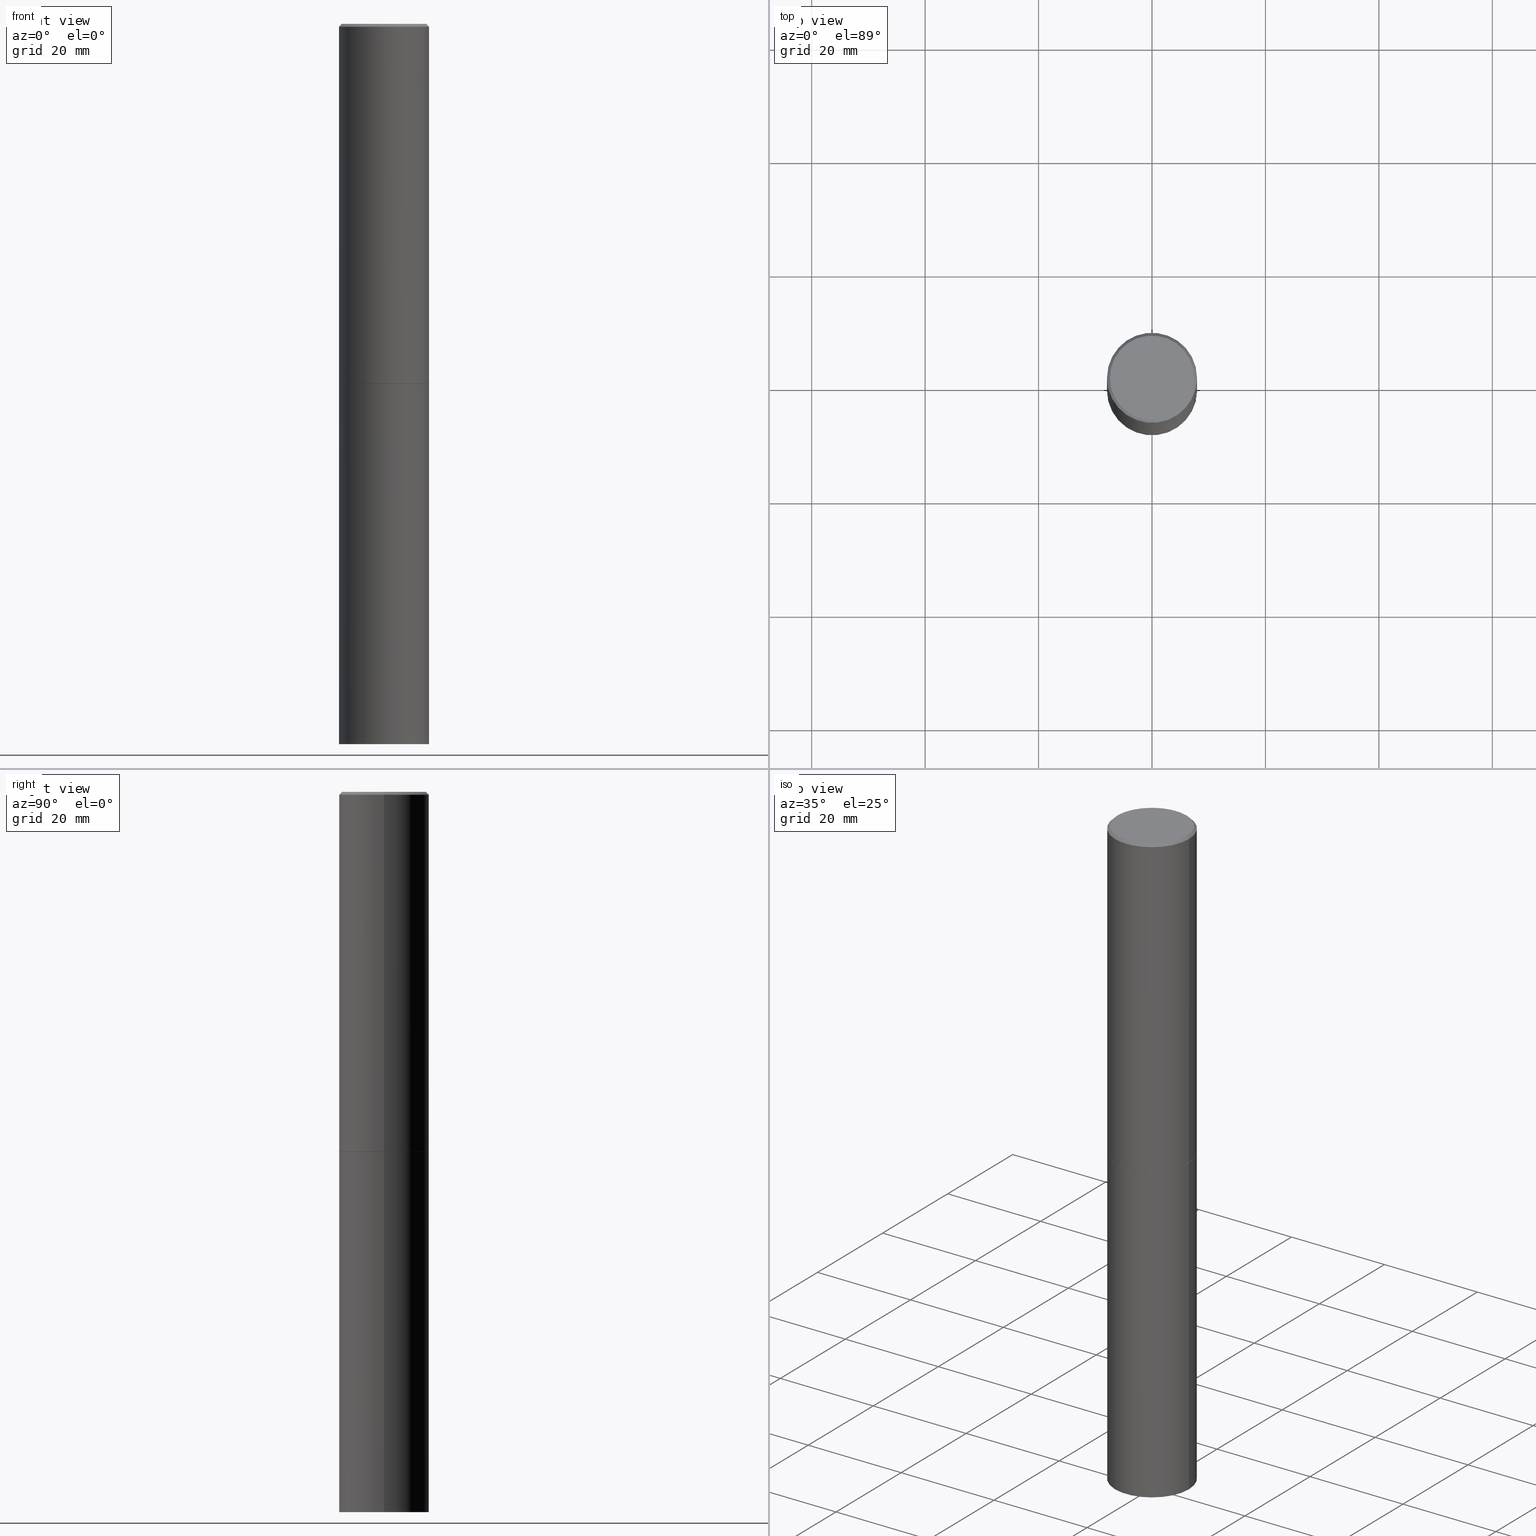
[diagram: canonical four-view strip — front | top / right | iso, engineering-drawing reading convention]
A machine part, canonical four-view strip (front | top / right | iso — engineering-drawing reading convention). The complete STEP part file that produces these views, byte-faithful:
ISO-10303-21;
HEADER;
FILE_DESCRIPTION (( 'STEP AP203' ),
    '1' );
FILE_NAME ('34718.STEP',
    '2024-02-27T17:00:30',
    ( '' ),
    ( '' ),
    'SwSTEP 2.0',
    'SolidWorks 2023',
    '' );
FILE_SCHEMA (( 'CONFIG_CONTROL_DESIGN' ));
ENDSEC;

DATA;
#1 = UNCERTAINTY_MEASURE_WITH_UNIT (LENGTH_MEASURE( 1.000000000000000082E-05 ), #25, 'distance_accuracy_value', 'NONE');
#2 = COORDINATED_UNIVERSAL_TIME_OFFSET ( 5, 0, .BEHIND. ) ;
#3 = CC_DESIGN_PERSON_AND_ORGANIZATION_ASSIGNMENT ( #337, #310, ( #106 ) ) ;
#4 = CIRCLE ( 'NONE', #175, 0.3124999999999997224 ) ;
#5 = MECHANICAL_CONTEXT ( 'NONE', #239, 'mechanical' ) ;
#6 = EDGE_CURVE ( 'NONE', #114, #268, #324, .T. ) ;
#7 = AXIS2_PLACEMENT_3D ( 'NONE', #20, #344, #215 ) ;
#8 = CC_DESIGN_PERSON_AND_ORGANIZATION_ASSIGNMENT ( #325, #249, ( #210 ) ) ;
#9 = ORIENTED_EDGE ( 'NONE', *, *, #135, .F. ) ;
#10 = ORIENTED_EDGE ( 'NONE', *, *, #259, .T. ) ;
#11 = DIRECTION ( 'NONE',  ( -0.7071067811868130271, 7.493145998871311837E-15, 0.7071067811862817853 ) ) ;
#12 = EDGE_LOOP ( 'NONE', ( #245, #123, #58, #172 ) ) ;
#13 = CLOSED_SHELL ( 'NONE', ( #102, #145, #34, #366 ) ) ;
#14 = APPROVAL_PERSON_ORGANIZATION ( #353, #258, #221 ) ;
#15 = ORIENTED_EDGE ( 'NONE', *, *, #326, .F. ) ;
#16 = EDGE_CURVE ( 'NONE', #217, #214, #56, .T. ) ;
#17 = PERSON_AND_ORGANIZATION ( #227, #279 ) ;
#18 = CARTESIAN_POINT ( 'NONE',  ( 2.182175836777080620E-15, 0.3124999999999825140, -5.000000000000000888 ) ) ;
#19 = ORIENTED_EDGE ( 'NONE', *, *, #16, .T. ) ;
#20 = CARTESIAN_POINT ( 'NONE',  ( 0.000000000000000000, 0.000000000000000000, 0.000000000000000000 ) ) ;
#21 = DIRECTION ( 'NONE',  ( 1.000000000000000000, -6.982962677686269077E-15, 0.000000000000000000 ) ) ;
#22 = COORDINATED_UNIVERSAL_TIME_OFFSET ( 5, 0, .BEHIND. ) ;
#23 = ADVANCED_FACE ( 'NONE', ( #299 ), #111, .T. ) ;
#24 = AXIS2_PLACEMENT_3D ( 'NONE', #292, #129, #100 ) ;
#25 =( CONVERSION_BASED_UNIT ( 'INCH', #194 ) LENGTH_UNIT ( ) NAMED_UNIT ( #260 ) );
#26 = LINE ( 'NONE', #284, #116 ) ;
#27 = DIRECTION ( 'NONE',  ( -2.445468806185136597E-29, 3.491481338843145583E-15, 1.000000000000000000 ) ) ;
#28 = CARTESIAN_POINT ( 'NONE',  ( 6.113672015462842613E-29, -8.728703347107864943E-15, -2.500000000000000000 ) ) ;
#29 = AXIS2_PLACEMENT_3D ( 'NONE', #248, #321, #46 ) ;
#30 = LOCAL_TIME ( 12, 0, 30.00000000000000000, #2 ) ;
#31 = ADVANCED_FACE ( 'NONE', ( #349 ), #156, .F. ) ;
#32 = AXIS2_PLACEMENT_3D ( 'NONE', #189, #352, #220 ) ;
#33 = DIRECTION ( 'NONE',  ( -1.000000000000000000, 6.982962677686266711E-15, 0.000000000000000000 ) ) ;
#34 = ADVANCED_FACE ( 'NONE', ( #77 ), #43, .F. ) ;
#35 = DIRECTION ( 'NONE',  ( 1.000000000000000000, 0.000000000000000000, 0.000000000000000000 ) ) ;
#36 = EDGE_LOOP ( 'NONE', ( #99, #103, #250, #184 ) ) ;
#37 = EDGE_CURVE ( 'NONE', #79, #114, #294, .T. ) ;
#38 = VECTOR ( 'NONE', #320, 39.37007874015748143 ) ;
#39 = ORIENTED_EDGE ( 'NONE', *, *, #285, .F. ) ;
#40 = CARTESIAN_POINT ( 'NONE',  ( 0.000000000000000000, 0.000000000000000000, 0.000000000000000000 ) ) ;
#41 = EDGE_CURVE ( 'NONE', #132, #164, #343, .T. ) ;
#42 = CARTESIAN_POINT ( 'NONE',  ( 6.113672015462842613E-29, -8.728703347107864943E-15, -2.500000000000000000 ) ) ;
#43 = PLANE ( 'NONE',  #32 ) ;
#44 = VECTOR ( 'NONE', #84, 39.37007874015748854 ) ;
#45 = APPROVAL ( #282, 'UNSPECIFIED' ) ;
#46 = DIRECTION ( 'NONE',  ( 1.000000000000000000, -6.982962677686265133E-15, 0.000000000000000000 ) ) ;
#47 = ORIENTED_EDGE ( 'NONE', *, *, #259, .F. ) ;
#48 = CARTESIAN_POINT ( 'NONE',  ( 6.111226546656659252E-29, -8.725211865769023513E-15, -2.499000000000000998 ) ) ;
#49 = CARTESIAN_POINT ( 'NONE',  ( 1.222734403092568523E-28, -1.745740669421572989E-14, -5.000000000000000000 ) ) ;
#50 = CYLINDRICAL_SURFACE ( 'NONE', #7, 0.3125000000000000000 ) ;
#51 = DIRECTION ( 'NONE',  ( 1.000000000000000000, -6.982962677686269077E-15, 0.000000000000000000 ) ) ;
#52 = CARTESIAN_POINT ( 'NONE',  ( 4.890937612370298557E-31, -6.982962677686327354E-17, -0.02000000000000010103 ) ) ;
#53 = CARTESIAN_POINT ( 'NONE',  ( 0.3125000000000000000, -1.091087918388482329E-14, -2.500000000000000000 ) ) ;
#54 = EDGE_CURVE ( 'NONE', #79, #340, #316, .T. ) ;
#55 = ORIENTED_EDGE ( 'NONE', *, *, #140, .T. ) ;
#56 = CIRCLE ( 'NONE', #29, 0.3125000000000000000 ) ;
#57 = CC_DESIGN_APPROVAL ( #258, ( #210 ) ) ;
#58 = ORIENTED_EDGE ( 'NONE', *, *, #6, .T. ) ;
#59 = APPLICATION_CONTEXT ( 'configuration controlled 3d designs of mechanical parts and assemblies' ) ;
#60 = PERSON_AND_ORGANIZATION ( #227, #279 ) ;
#61 = CIRCLE ( 'NONE', #169, 0.3124999999999997224 ) ;
#62 = CARTESIAN_POINT ( 'NONE',  ( 4.890937612370298557E-31, -6.982962677686327354E-17, -0.02000000000000010103 ) ) ;
#63 = CARTESIAN_POINT ( 'NONE',  ( -0.3124999999999998890, 2.220446049250312292E-15, -1.537167215704657391E-29 ) ) ;
#64 = EDGE_LOOP ( 'NONE', ( #15, #231, #351, #328 ) ) ;
#65 = EDGE_CURVE ( 'NONE', #164, #214, #179, .T. ) ;
#66 = DIRECTION ( 'NONE',  ( 2.445468806185136597E-29, -3.491481338843145583E-15, -1.000000000000000000 ) ) ;
#67 = DIRECTION ( 'NONE',  ( -2.445468806185136597E-29, 3.491481338843145583E-15, 1.000000000000000000 ) ) ;
#68 = PERSON_AND_ORGANIZATION_ROLE ( 'creator' ) ;
#69 = DIRECTION ( 'NONE',  ( 2.438088387897960049E-29, -3.491481338843145188E-15, -1.000000000000000000 ) ) ;
#70 = CALENDAR_DATE ( 2024, 27, 2 ) ;
#71 = AXIS2_PLACEMENT_3D ( 'NONE', #204, #142, #315 ) ;
#72 = APPROVAL_PERSON_ORGANIZATION ( #60, #141, #174 ) ;
#73 = ADVANCED_FACE ( 'NONE', ( #243 ), #230, .T. ) ;
#74 = ORIENTED_EDGE ( 'NONE', *, *, #6, .F. ) ;
#75 = DIRECTION ( 'NONE',  ( -2.445468806185136877E-29, 3.491481338843145188E-15, 1.000000000000000000 ) ) ;
#76 = DIRECTION ( 'NONE',  ( -2.445468806185136597E-29, 3.491481338843145583E-15, 1.000000000000000000 ) ) ;
#77 = FACE_OUTER_BOUND ( 'NONE', #339, .T. ) ;
#78 = CC_DESIGN_DATE_AND_TIME_ASSIGNMENT ( #246, #115, ( #106 ) ) ;
#79 = VERTEX_POINT ( 'NONE', #118 ) ;
#80 =( NAMED_UNIT ( * ) SI_UNIT ( $, .STERADIAN. ) SOLID_ANGLE_UNIT ( ) );
#81 = FACE_OUTER_BOUND ( 'NONE', #272, .T. ) ;
#82 = AXIS2_PLACEMENT_3D ( 'NONE', #153, #252, #298 ) ;
#83 = ORIENTED_EDGE ( 'NONE', *, *, #283, .F. ) ;
#84 = DIRECTION ( 'NONE',  ( 0.7071067811868130271, -2.468850131085038979E-15, 0.7071067811862817853 ) ) ;
#85 = DIRECTION ( 'NONE',  ( -2.445468806185136597E-29, 3.491481338843145583E-15, 1.000000000000000000 ) ) ;
#86 = CC_DESIGN_DATE_AND_TIME_ASSIGNMENT ( #356, #105, ( #210 ) ) ;
#87 = AXIS2_PLACEMENT_3D ( 'NONE', #91, #288, #35 ) ;
#88 = FACE_OUTER_BOUND ( 'NONE', #12, .T. ) ;
#89 = CLOSED_SHELL ( 'NONE', ( #173, #196, #266, #73, #92, #23, #295, #31 ) ) ;
#90 = LOCAL_TIME ( 12, 0, 30.00000000000000000, #277 ) ;
#91 = CARTESIAN_POINT ( 'NONE',  ( 0.000000000000000000, 0.000000000000000000, 0.000000000000000000 ) ) ;
#92 = ADVANCED_FACE ( 'NONE', ( #88 ), #287, .T. ) ;
#93 = DIRECTION ( 'NONE',  ( -2.445468806185136597E-29, 3.491481338843145583E-15, 1.000000000000000000 ) ) ;
#94 = CIRCLE ( 'NONE', #96, 0.3125000000000000000 ) ;
#95 = CARTESIAN_POINT ( 'NONE',  ( 0.3125000000000000000, -1.963958253099268981E-14, -5.000000000000000000 ) ) ;
#96 = AXIS2_PLACEMENT_3D ( 'NONE', #136, #229, #256 ) ;
#97 = DIRECTION ( 'NONE',  ( -1.000000000000000000, 6.982962677686265922E-15, -4.876176775795935793E-29 ) ) ;
#98 = CARTESIAN_POINT ( 'NONE',  ( 2.042516583223230567E-15, 0.2924999999999997047, -1.016989779121518604E-15 ) ) ;
#99 = ORIENTED_EDGE ( 'NONE', *, *, #314, .F. ) ;
#100 = DIRECTION ( 'NONE',  ( 1.000000000000000000, -6.982962677686265133E-15, 4.876067333457694521E-29 ) ) ;
#101 = APPROVAL_STATUS ( 'not_yet_approved' ) ;
#102 = ADVANCED_FACE ( 'NONE', ( #181 ), #348, .T. ) ;
#103 = ORIENTED_EDGE ( 'NONE', *, *, #41, .T. ) ;
#104 = AXIS2_PLACEMENT_3D ( 'NONE', #290, #146, #224 ) ;
#105 = DATE_TIME_ROLE ( 'classification_date' ) ;
#106 = PRODUCT_DEFINITION ( 'UNKNOWN', '', #112, #308 ) ;
#107 = ORIENTED_EDGE ( 'NONE', *, *, #253, .F. ) ;
#108 = CARTESIAN_POINT ( 'NONE',  ( 0.3114999999999999991, -1.090389622120713728E-14, -2.500000000000000000 ) ) ;
#109 = SHAPE_DEFINITION_REPRESENTATION ( #205, #365 ) ;
#110 = DIRECTION ( 'NONE',  ( 1.000000000000000000, -6.982962677686269077E-15, 0.000000000000000000 ) ) ;
#111 = CONICAL_SURFACE ( 'NONE', #197, 0.3114999999999999991, 0.7853981633978239785 ) ;
#112 = PRODUCT_DEFINITION_FORMATION_WITH_SPECIFIED_SOURCE ( 'ANY', '', #262, .NOT_KNOWN. ) ;
#113 = DIRECTION ( 'NONE',  ( -2.438088387897960049E-29, 3.491481338843145188E-15, 1.000000000000000000 ) ) ;
#114 = VERTEX_POINT ( 'NONE', #155 ) ;
#115 = DATE_TIME_ROLE ( 'creation_date' ) ;
#116 = VECTOR ( 'NONE', #134, 39.37007874015748143 ) ;
#117 = VECTOR ( 'NONE', #158, 39.37007874015748143 ) ;
#118 = CARTESIAN_POINT ( 'NONE',  ( -0.3125000000000000000, -2.177074697022629142E-15, -2.499000000000000998 ) ) ;
#119 = DATE_AND_TIME ( #203, #30 ) ;
#120 = APPLICATION_PROTOCOL_DEFINITION ( 'international standard', 'config_control_design', 1994, #59 ) ;
#121 = EDGE_CURVE ( 'NONE', #268, #340, #4, .T. ) ;
#122 = EDGE_CURVE ( 'NONE', #322, #346, #269, .T. ) ;
#123 = ORIENTED_EDGE ( 'NONE', *, *, #37, .T. ) ;
#124 = DIRECTION ( 'NONE',  ( -2.445468806185136597E-29, 3.491481338843145583E-15, 1.000000000000000000 ) ) ;
#125 = PRODUCT_RELATED_PRODUCT_CATEGORY ( 'detail', '', ( #262 ) ) ;
#126 = EDGE_LOOP ( 'NONE', ( #361, #137, #148, #74 ) ) ;
#127 = CONICAL_SURFACE ( 'NONE', #233, 0.3114999999999999991, 0.7853981633978239785 ) ;
#128 = CARTESIAN_POINT ( 'NONE',  ( -0.3114999999999999991, -6.510064270866932046E-15, -2.500000000000000000 ) ) ;
#129 = DIRECTION ( 'NONE',  ( -2.445468806185136597E-29, 3.491481338843145583E-15, 1.000000000000000000 ) ) ;
#130 = CARTESIAN_POINT ( 'NONE',  ( 6.113672015462842613E-29, -8.728703347107864943E-15, -2.500000000000000000 ) ) ;
#131 = PERSON_AND_ORGANIZATION ( #227, #279 ) ;
#132 = VERTEX_POINT ( 'NONE', #149 ) ;
#133 = FACE_OUTER_BOUND ( 'NONE', #126, .T. ) ;
#134 = DIRECTION ( 'NONE',  ( -0.7071067811865466846, 2.468850131082247989E-15, -0.7071067811865483499 ) ) ;
#135 = EDGE_CURVE ( 'NONE', #114, #79, #286, .T. ) ;
#136 = CARTESIAN_POINT ( 'NONE',  ( 1.222734403092568523E-28, -1.745740669421572989E-14, -5.000000000000000000 ) ) ;
#137 = ORIENTED_EDGE ( 'NONE', *, *, #54, .T. ) ;
#138 = CARTESIAN_POINT ( 'NONE',  ( 6.113672015462842613E-29, -8.728703347107864943E-15, -2.500000000000000000 ) ) ;
#139 = AXIS2_PLACEMENT_3D ( 'NONE', #98, #69, #97 ) ;
#140 = EDGE_CURVE ( 'NONE', #345, #79, #183, .T. ) ;
#141 = APPROVAL ( #261, 'UNSPECIFIED' ) ;
#142 = DIRECTION ( 'NONE',  ( -2.445468806185136597E-29, 3.491481338843145583E-15, 1.000000000000000000 ) ) ;
#143 = EDGE_LOOP ( 'NONE', ( #319, #10, #228, #296 ) ) ;
#144 = APPROVAL_PERSON_ORGANIZATION ( #198, #45, #225 ) ;
#145 = ADVANCED_FACE ( 'NONE', ( #275 ), #265, .T. ) ;
#146 = DIRECTION ( 'NONE',  ( -2.445468806185136597E-29, 3.491481338843145583E-15, 1.000000000000000000 ) ) ;
#147 = DIRECTION ( 'NONE',  ( -2.445468806185136877E-29, 3.491481338843145188E-15, 1.000000000000000000 ) ) ;
#148 = ORIENTED_EDGE ( 'NONE', *, *, #121, .F. ) ;
#149 = CARTESIAN_POINT ( 'NONE',  ( -0.3125000000000000000, -1.087260897141148433E-14, -5.000000000000000000 ) ) ;
#150 = CARTESIAN_POINT ( 'NONE',  ( 6.111226546656659252E-29, -8.725211865769023513E-15, -2.499000000000000998 ) ) ;
#151 = CARTESIAN_POINT ( 'NONE',  ( -0.3124999999999997224, 2.112346210000093077E-15, -0.02000000000000010103 ) ) ;
#152 = VECTOR ( 'NONE', #270, 39.37007874015748143 ) ;
#153 = CARTESIAN_POINT ( 'NONE',  ( 6.113672015462842613E-29, -8.728703347107864943E-15, -2.500000000000000000 ) ) ;
#154 = EDGE_LOOP ( 'NONE', ( #176, #47 ) ) ;
#155 = CARTESIAN_POINT ( 'NONE',  ( 0.3125000000000000000, -1.090738770254598186E-14, -2.499000000000000998 ) ) ;
#156 = PLANE ( 'NONE',  #139 ) ;
#157 = APPROVAL_DATE_TIME ( #358, #45 ) ;
#158 = DIRECTION ( 'NONE',  ( 0.7071067811865466846, -7.319954787623252890E-15, -0.7071067811865483499 ) ) ;
#159 = ORIENTED_EDGE ( 'NONE', *, *, #41, .F. ) ;
#160 = CARTESIAN_POINT ( 'NONE',  ( -0.2924999999999997047, 2.077431396611661822E-15, 8.537024980186416602E-18 ) ) ;
#161 = DIRECTION ( 'NONE',  ( -2.445468806185136597E-29, 3.491481338843145583E-15, 1.000000000000000000 ) ) ;
#162 =( GEOMETRIC_REPRESENTATION_CONTEXT ( 3 ) GLOBAL_UNCERTAINTY_ASSIGNED_CONTEXT ( ( #1 ) ) GLOBAL_UNIT_ASSIGNED_CONTEXT ( ( #25, #211, #80 ) ) REPRESENTATION_CONTEXT ( 'NONE', 'WORKASPACE' ) );
#163 = DIRECTION ( 'NONE',  ( -1.000000000000000000, 6.982962677686266711E-15, 0.000000000000000000 ) ) ;
#164 = VERTEX_POINT ( 'NONE', #95 ) ;
#165 = PLANE ( 'NONE',  #188 ) ;
#166 = DIRECTION ( 'NONE',  ( 1.000000000000000000, -6.982962677686266711E-15, 0.000000000000000000 ) ) ;
#167 = CIRCLE ( 'NONE', #82, 0.3125000000000000000 ) ;
#168 = PERSON_AND_ORGANIZATION ( #227, #279 ) ;
#169 = AXIS2_PLACEMENT_3D ( 'NONE', #52, #161, #166 ) ;
#170 = LOCAL_TIME ( 12, 0, 30.00000000000000000, #312 ) ;
#171 = CC_DESIGN_PERSON_AND_ORGANIZATION_ASSIGNMENT ( #131, #68, ( #112 ) ) ;
#172 = ORIENTED_EDGE ( 'NONE', *, *, #234, .F. ) ;
#173 = ADVANCED_FACE ( 'NONE', ( #187 ), #127, .T. ) ;
#174 = APPROVAL_ROLE ( '' ) ;
#175 = AXIS2_PLACEMENT_3D ( 'NONE', #62, #242, #255 ) ;
#176 = ORIENTED_EDGE ( 'NONE', *, *, #222, .F. ) ;
#177 = EDGE_CURVE ( 'NONE', #214, #217, #167, .T. ) ;
#178 = CYLINDRICAL_SURFACE ( 'NONE', #104, 0.3124999999999998890 ) ;
#179 = LINE ( 'NONE', #291, #237 ) ;
#180 =( LENGTH_UNIT ( ) NAMED_UNIT ( * ) SI_UNIT ( $, .METRE. ) );
#181 = FACE_OUTER_BOUND ( 'NONE', #241, .T. ) ;
#182 = CARTESIAN_POINT ( 'NONE',  ( 0.3124999999999998890, -2.182175836776957558E-15, 1.523805242436229235E-29 ) ) ;
#183 = LINE ( 'NONE', #341, #218 ) ;
#184 = ORIENTED_EDGE ( 'NONE', *, *, #16, .F. ) ;
#185 = ORIENTED_EDGE ( 'NONE', *, *, #177, .F. ) ;
#186 = AXIS2_PLACEMENT_3D ( 'NONE', #48, #76, #191 ) ;
#187 = FACE_OUTER_BOUND ( 'NONE', #355, .T. ) ;
#188 = AXIS2_PLACEMENT_3D ( 'NONE', #28, #113, #251 ) ;
#189 = CARTESIAN_POINT ( 'NONE',  ( 2.182175836777019089E-15, 0.3124999999999912847, -2.500000000000001332 ) ) ;
#190 = CARTESIAN_POINT ( 'NONE',  ( 0.2924999999999997047, -2.110215457714317959E-15, 8.537024980215342529E-18 ) ) ;
#191 = DIRECTION ( 'NONE',  ( 1.000000000000000000, -6.982962677686265133E-15, 0.000000000000000000 ) ) ;
#192 = DIRECTION ( 'NONE',  ( 1.000000000000000000, -6.982962677686265133E-15, 0.000000000000000000 ) ) ;
#193 = SECURITY_CLASSIFICATION_LEVEL ( 'unclassified' ) ;
#194 = LENGTH_MEASURE_WITH_UNIT ( LENGTH_MEASURE( 0.02539999999999999897 ), #180 );
#195 = CARTESIAN_POINT ( 'NONE',  ( 4.890937612370298557E-31, -6.982962677686327354E-17, -0.02000000000000010103 ) ) ;
#196 = ADVANCED_FACE ( 'NONE', ( #133 ), #178, .T. ) ;
#197 = AXIS2_PLACEMENT_3D ( 'NONE', #130, #276, #293 ) ;
#198 = PERSON_AND_ORGANIZATION ( #227, #279 ) ;
#199 = LOCAL_TIME ( 12, 0, 30.00000000000000000, #332 ) ;
#200 = FACE_OUTER_BOUND ( 'NONE', #154, .T. ) ;
#201 = AXIS2_PLACEMENT_3D ( 'NONE', #40, #124, #219 ) ;
#202 = ORIENTED_EDGE ( 'NONE', *, *, #122, .T. ) ;
#203 = CALENDAR_DATE ( 2024, 27, 2 ) ;
#204 = CARTESIAN_POINT ( 'NONE',  ( 0.000000000000000000, 0.000000000000000000, 0.000000000000000000 ) ) ;
#205 = PRODUCT_DEFINITION_SHAPE ( 'NONE', 'NONE',  #106 ) ;
#206 = ORIENTED_EDGE ( 'NONE', *, *, #326, .T. ) ;
#207 = PERSON_AND_ORGANIZATION_ROLE ( 'design_owner' ) ;
#208 = DIRECTION ( 'NONE',  ( 1.000000000000000000, -6.982962677686269077E-15, 0.000000000000000000 ) ) ;
#209 = AXIS2_PLACEMENT_3D ( 'NONE', #226, #85, #110 ) ;
#210 = SECURITY_CLASSIFICATION ( '', '', #193 ) ;
#211 =( NAMED_UNIT ( * ) PLANE_ANGLE_UNIT ( ) SI_UNIT ( $, .RADIAN. ) );
#212 = DIRECTION ( 'NONE',  ( 2.438088387897960049E-29, -3.491481338843145188E-15, -1.000000000000000000 ) ) ;
#213 = ORIENTED_EDGE ( 'NONE', *, *, #177, .T. ) ;
#214 = VERTEX_POINT ( 'NONE', #53 ) ;
#215 = DIRECTION ( 'NONE',  ( 1.000000000000000000, -6.982962677686266711E-15, 4.876176775795936353E-29 ) ) ;
#216 = CALENDAR_DATE ( 2024, 27, 2 ) ;
#217 = VERTEX_POINT ( 'NONE', #362 ) ;
#218 = VECTOR ( 'NONE', #11, 39.37007874015748854 ) ;
#219 = DIRECTION ( 'NONE',  ( 1.000000000000000000, -6.982962677686266711E-15, 4.876176775795936353E-29 ) ) ;
#220 = DIRECTION ( 'NONE',  ( -1.000000000000000000, 6.982962677686265922E-15, -4.876176775795935793E-29 ) ) ;
#221 = APPROVAL_ROLE ( '' ) ;
#222 = EDGE_CURVE ( 'NONE', #247, #345, #263, .T. ) ;
#223 = LINE ( 'NONE', #300, #117 ) ;
#224 = DIRECTION ( 'NONE',  ( 1.000000000000000000, -6.982962677686266711E-15, 4.876176775795935232E-29 ) ) ;
#225 = APPROVAL_ROLE ( '' ) ;
#226 = CARTESIAN_POINT ( 'NONE',  ( 6.113672015462842613E-29, -8.728703347107864943E-15, -2.500000000000000000 ) ) ;
#227 = PERSON ( 'UNSPECIFIED', 'UNSPECIFIED', 'UNSPECIFIED', ('UNSPECIFIED'), ('UNSPECIFIED'), ('UNSPECIFIED') ) ;
#228 = ORIENTED_EDGE ( 'NONE', *, *, #285, .T. ) ;
#229 = DIRECTION ( 'NONE',  ( -2.445468806185136597E-29, 3.491481338843145583E-15, 1.000000000000000000 ) ) ;
#230 = CONICAL_SURFACE ( 'NONE', #244, 0.3124999999999997224, 0.7853981633974471688 ) ;
#231 = ORIENTED_EDGE ( 'NONE', *, *, #236, .F. ) ;
#232 = APPROVAL_DATE_TIME ( #119, #141 ) ;
#233 = AXIS2_PLACEMENT_3D ( 'NONE', #42, #67, #21 ) ;
#234 = EDGE_CURVE ( 'NONE', #340, #268, #61, .T. ) ;
#235 = CC_DESIGN_PERSON_AND_ORGANIZATION_ASSIGNMENT ( #168, #207, ( #262 ) ) ;
#236 = EDGE_CURVE ( 'NONE', #346, #322, #333, .T. ) ;
#237 = VECTOR ( 'NONE', #147, 39.37007874015748143 ) ;
#238 = LOCAL_TIME ( 12, 0, 30.00000000000000000, #22 ) ;
#239 = APPLICATION_CONTEXT ( 'configuration controlled 3d designs of mechanical parts and assemblies' ) ;
#240 = DIRECTION ( 'NONE',  ( -2.445468806185136597E-29, 3.491481338843145583E-15, 1.000000000000000000 ) ) ;
#241 = EDGE_LOOP ( 'NONE', ( #264, #304, #185, #302 ) ) ;
#242 = DIRECTION ( 'NONE',  ( -2.445468806185136597E-29, 3.491481338843145583E-15, 1.000000000000000000 ) ) ;
#243 = FACE_OUTER_BOUND ( 'NONE', #64, .T. ) ;
#244 = AXIS2_PLACEMENT_3D ( 'NONE', #342, #66, #33 ) ;
#245 = ORIENTED_EDGE ( 'NONE', *, *, #54, .F. ) ;
#246 = DATE_AND_TIME ( #70, #170 ) ;
#247 = VERTEX_POINT ( 'NONE', #108 ) ;
#248 = CARTESIAN_POINT ( 'NONE',  ( 6.113672015462842613E-29, -8.728703347107864943E-15, -2.500000000000000000 ) ) ;
#249 = PERSON_AND_ORGANIZATION_ROLE ( 'classification_officer' ) ;
#250 = ORIENTED_EDGE ( 'NONE', *, *, #65, .T. ) ;
#251 = DIRECTION ( 'NONE',  ( 1.000000000000000000, -6.982962677686265922E-15, 4.876176775795935793E-29 ) ) ;
#252 = DIRECTION ( 'NONE',  ( -2.445468806185136597E-29, 3.491481338843145583E-15, 1.000000000000000000 ) ) ;
#253 = EDGE_CURVE ( 'NONE', #346, #340, #26, .T. ) ;
#254 = MANIFOLD_SOLID_BREP ( 'Body-Move/Copy2[2]', #89 ) ;
#255 = DIRECTION ( 'NONE',  ( 1.000000000000000000, -6.982962677686266711E-15, 0.000000000000000000 ) ) ;
#256 = DIRECTION ( 'NONE',  ( 1.000000000000000000, -6.982962677686269077E-15, 0.000000000000000000 ) ) ;
#257 = AXIS2_PLACEMENT_3D ( 'NONE', #49, #93, #208 ) ;
#258 = APPROVAL ( #101, 'UNSPECIFIED' ) ;
#259 = EDGE_CURVE ( 'NONE', #345, #247, #317, .T. ) ;
#260 = DIMENSIONAL_EXPONENTS ( 1.000000000000000000, 0.000000000000000000, 0.000000000000000000, 0.000000000000000000, 0.000000000000000000, 0.000000000000000000, 0.000000000000000000 ) ;
#261 = APPROVAL_STATUS ( 'not_yet_approved' ) ;
#262 = PRODUCT ( '34718', '34718', '', ( #5 ) ) ;
#263 = CIRCLE ( 'NONE', #309, 0.3114999999999999991 ) ;
#264 = ORIENTED_EDGE ( 'NONE', *, *, #283, .T. ) ;
#265 = PLANE ( 'NONE',  #327 ) ;
#266 = ADVANCED_FACE ( 'NONE', ( #81 ), #303, .T. ) ;
#267 = ORIENTED_EDGE ( 'NONE', *, *, #222, .T. ) ;
#268 = VERTEX_POINT ( 'NONE', #281 ) ;
#269 = CIRCLE ( 'NONE', #24, 0.2924999999999997047 ) ;
#270 = DIRECTION ( 'NONE',  ( -2.445468806185136877E-29, 3.491481338843145188E-15, 1.000000000000000000 ) ) ;
#271 = PERSON_AND_ORGANIZATION_ROLE ( 'design_supplier' ) ;
#272 = EDGE_LOOP ( 'NONE', ( #274, #206, #363, #107 ) ) ;
#273 = CARTESIAN_POINT ( 'NONE',  ( -0.3125000000000000000, 2.220446049250313081E-15, -1.537167215704658232E-29 ) ) ;
#274 = ORIENTED_EDGE ( 'NONE', *, *, #122, .F. ) ;
#275 = FACE_OUTER_BOUND ( 'NONE', #311, .T. ) ;
#276 = DIRECTION ( 'NONE',  ( -2.445468806185136597E-29, 3.491481338843145583E-15, 1.000000000000000000 ) ) ;
#277 = COORDINATED_UNIVERSAL_TIME_OFFSET ( 5, 0, .BEHIND. ) ;
#278 = AXIS2_PLACEMENT_3D ( 'NONE', #357, #331, #280 ) ;
#279 = ORGANIZATION ( 'UNSPECIFIED', 'UNSPECIFIED', '' ) ;
#280 = DIRECTION ( 'NONE',  ( 1.000000000000000000, -6.982962677686265133E-15, 4.876067333457694521E-29 ) ) ;
#281 = CARTESIAN_POINT ( 'NONE',  ( 0.3124999999999997224, -2.213735251080464939E-15, -0.02000000000000010103 ) ) ;
#282 = APPROVAL_STATUS ( 'not_yet_approved' ) ;
#283 = EDGE_CURVE ( 'NONE', #164, #132, #94, .T. ) ;
#284 = CARTESIAN_POINT ( 'NONE',  ( -0.3124999999999997224, 2.112346210000093077E-15, -0.02000000000000010103 ) ) ;
#285 = EDGE_CURVE ( 'NONE', #247, #114, #360, .T. ) ;
#286 = CIRCLE ( 'NONE', #186, 0.3125000000000000000 ) ;
#287 = CYLINDRICAL_SURFACE ( 'NONE', #71, 0.3124999999999998890 ) ;
#288 = DIRECTION ( 'NONE',  ( 0.000000000000000000, 0.000000000000000000, 1.000000000000000000 ) ) ;
#289 = EDGE_LOOP ( 'NONE', ( #334, #202 ) ) ;
#290 = CARTESIAN_POINT ( 'NONE',  ( 0.000000000000000000, 0.000000000000000000, 0.000000000000000000 ) ) ;
#291 = CARTESIAN_POINT ( 'NONE',  ( 0.3125000000000000000, -2.182175836776958347E-15, 1.523805242436230075E-29 ) ) ;
#292 = CARTESIAN_POINT ( 'NONE',  ( -2.087702828670439639E-46, 2.980686340760894400E-32, 8.537024980200822558E-18 ) ) ;
#293 = DIRECTION ( 'NONE',  ( 1.000000000000000000, -6.982962677686269077E-15, 0.000000000000000000 ) ) ;
#294 = CIRCLE ( 'NONE', #313, 0.3125000000000000000 ) ;
#295 = ADVANCED_FACE ( 'NONE', ( #200 ), #165, .F. ) ;
#296 = ORIENTED_EDGE ( 'NONE', *, *, #37, .F. ) ;
#297 = CC_DESIGN_SECURITY_CLASSIFICATION ( #210, ( #112 ) ) ;
#298 = DIRECTION ( 'NONE',  ( 1.000000000000000000, -6.982962677686265133E-15, 0.000000000000000000 ) ) ;
#299 = FACE_OUTER_BOUND ( 'NONE', #143, .T. ) ;
#300 = CARTESIAN_POINT ( 'NONE',  ( 0.3124999999999997224, -2.213735251080464939E-15, -0.02000000000000010103 ) ) ;
#301 = DATE_AND_TIME ( #216, #199 ) ;
#302 = ORIENTED_EDGE ( 'NONE', *, *, #65, .F. ) ;
#303 = CONICAL_SURFACE ( 'NONE', #305, 0.3124999999999997224, 0.7853981633974471688 ) ;
#304 = ORIENTED_EDGE ( 'NONE', *, *, #314, .T. ) ;
#305 = AXIS2_PLACEMENT_3D ( 'NONE', #195, #306, #163 ) ;
#306 = DIRECTION ( 'NONE',  ( 2.445468806185136597E-29, -3.491481338843145583E-15, -1.000000000000000000 ) ) ;
#307 = CALENDAR_DATE ( 2024, 27, 2 ) ;
#308 = DESIGN_CONTEXT ( 'detailed design', #59, 'design' ) ;
#309 = AXIS2_PLACEMENT_3D ( 'NONE', #138, #27, #51 ) ;
#310 = PERSON_AND_ORGANIZATION_ROLE ( 'creator' ) ;
#311 = EDGE_LOOP ( 'NONE', ( #83, #159 ) ) ;
#312 = COORDINATED_UNIVERSAL_TIME_OFFSET ( 5, 0, .BEHIND. ) ;
#313 = AXIS2_PLACEMENT_3D ( 'NONE', #150, #240, #192 ) ;
#314 = EDGE_CURVE ( 'NONE', #132, #217, #329, .T. ) ;
#315 = DIRECTION ( 'NONE',  ( 1.000000000000000000, -6.982962677686266711E-15, 4.876176775795935232E-29 ) ) ;
#316 = LINE ( 'NONE', #63, #152 ) ;
#317 = CIRCLE ( 'NONE', #209, 0.3114999999999999991 ) ;
#318 = VECTOR ( 'NONE', #75, 39.37007874015748143 ) ;
#319 = ORIENTED_EDGE ( 'NONE', *, *, #140, .F. ) ;
#320 = DIRECTION ( 'NONE',  ( -2.445468806185136877E-29, 3.491481338843145188E-15, 1.000000000000000000 ) ) ;
#321 = DIRECTION ( 'NONE',  ( -2.445468806185136597E-29, 3.491481338843145583E-15, 1.000000000000000000 ) ) ;
#322 = VERTEX_POINT ( 'NONE', #190 ) ;
#323 = DIRECTION ( 'NONE',  ( -1.000000000000000000, 6.982962677686265922E-15, -4.876176775795935793E-29 ) ) ;
#324 = LINE ( 'NONE', #182, #38 ) ;
#325 = PERSON_AND_ORGANIZATION ( #227, #279 ) ;
#326 = EDGE_CURVE ( 'NONE', #322, #268, #223, .T. ) ;
#327 = AXIS2_PLACEMENT_3D ( 'NONE', #18, #212, #323 ) ;
#328 = ORIENTED_EDGE ( 'NONE', *, *, #234, .T. ) ;
#329 = LINE ( 'NONE', #273, #318 ) ;
#330 = APPROVAL_DATE_TIME ( #301, #258 ) ;
#331 = DIRECTION ( 'NONE',  ( -2.445468806185136597E-29, 3.491481338843145583E-15, 1.000000000000000000 ) ) ;
#332 = COORDINATED_UNIVERSAL_TIME_OFFSET ( 5, 0, .BEHIND. ) ;
#333 = CIRCLE ( 'NONE', #278, 0.2924999999999997047 ) ;
#334 = ORIENTED_EDGE ( 'NONE', *, *, #236, .T. ) ;
#335 = CARTESIAN_POINT ( 'NONE',  ( 0.3114999999999999991, -1.090389622120713728E-14, -2.500000000000000000 ) ) ;
#336 = CC_DESIGN_PERSON_AND_ORGANIZATION_ASSIGNMENT ( #17, #271, ( #112 ) ) ;
#337 = PERSON_AND_ORGANIZATION ( #227, #279 ) ;
#338 = APPLICATION_PROTOCOL_DEFINITION ( 'international standard', 'config_control_design', 1994, #239 ) ;
#339 = EDGE_LOOP ( 'NONE', ( #213, #19 ) ) ;
#340 = VERTEX_POINT ( 'NONE', #151 ) ;
#341 = CARTESIAN_POINT ( 'NONE',  ( -0.3114999999999999991, -6.515362725215152081E-15, -2.500000000000000000 ) ) ;
#342 = CARTESIAN_POINT ( 'NONE',  ( 4.890937612370298557E-31, -6.982962677686327354E-17, -0.02000000000000010103 ) ) ;
#343 = CIRCLE ( 'NONE', #257, 0.3125000000000000000 ) ;
#344 = DIRECTION ( 'NONE',  ( -2.445468806185136597E-29, 3.491481338843145583E-15, 1.000000000000000000 ) ) ;
#345 = VERTEX_POINT ( 'NONE', #128 ) ;
#346 = VERTEX_POINT ( 'NONE', #160 ) ;
#347 = FACE_OUTER_BOUND ( 'NONE', #36, .T. ) ;
#348 = CYLINDRICAL_SURFACE ( 'NONE', #201, 0.3125000000000000000 ) ;
#349 = FACE_OUTER_BOUND ( 'NONE', #289, .T. ) ;
#350 = CALENDAR_DATE ( 2024, 27, 2 ) ;
#351 = ORIENTED_EDGE ( 'NONE', *, *, #253, .T. ) ;
#352 = DIRECTION ( 'NONE',  ( 2.438088387897960049E-29, -3.491481338843145188E-15, -1.000000000000000000 ) ) ;
#353 = PERSON_AND_ORGANIZATION ( #227, #279 ) ;
#354 = CC_DESIGN_APPROVAL ( #45, ( #112 ) ) ;
#355 = EDGE_LOOP ( 'NONE', ( #267, #55, #9, #39 ) ) ;
#356 = DATE_AND_TIME ( #350, #238 ) ;
#357 = CARTESIAN_POINT ( 'NONE',  ( -2.087702828670439639E-46, 2.980686340760894400E-32, 8.537024980200822558E-18 ) ) ;
#358 = DATE_AND_TIME ( #307, #90 ) ;
#359 = MANIFOLD_SOLID_BREP ( 'Body-Move/Copy2[1]', #13 ) ;
#360 = LINE ( 'NONE', #335, #44 ) ;
#361 = ORIENTED_EDGE ( 'NONE', *, *, #135, .T. ) ;
#362 = CARTESIAN_POINT ( 'NONE',  ( -0.3125000000000000000, -1.087260897141148433E-14, -2.500000000000000000 ) ) ;
#363 = ORIENTED_EDGE ( 'NONE', *, *, #121, .T. ) ;
#364 = CC_DESIGN_APPROVAL ( #141, ( #106 ) ) ;
#365 = ADVANCED_BREP_SHAPE_REPRESENTATION ( '34718', ( #359, #254, #87 ), #162 ) ;
#366 = ADVANCED_FACE ( 'NONE', ( #347 ), #50, .T. ) ;
ENDSEC;
END-ISO-10303-21;
